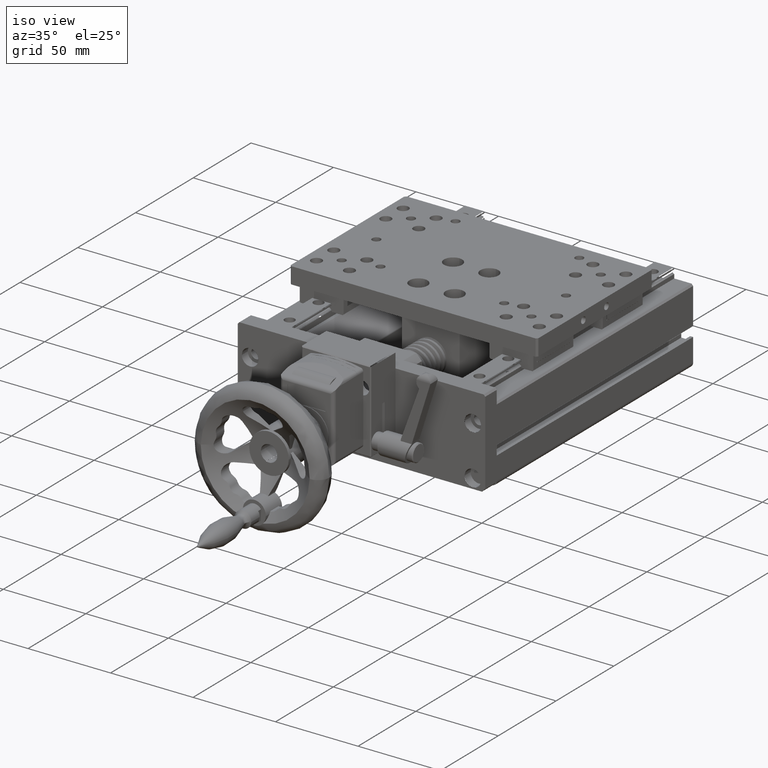
[diagram: clean part render]
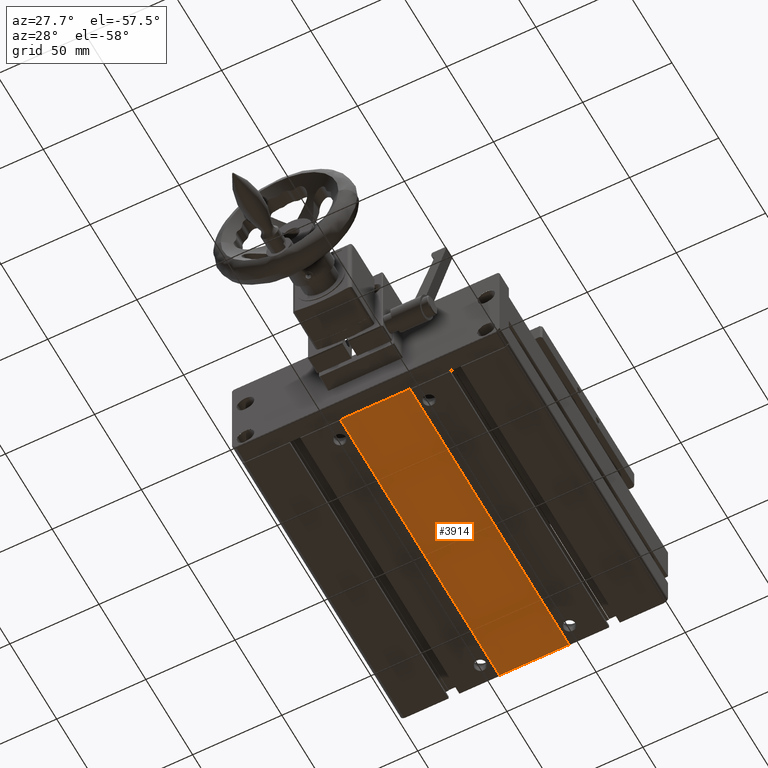
[diagram: tour spotlight — one face highlighted and labeled with its STEP entity id]
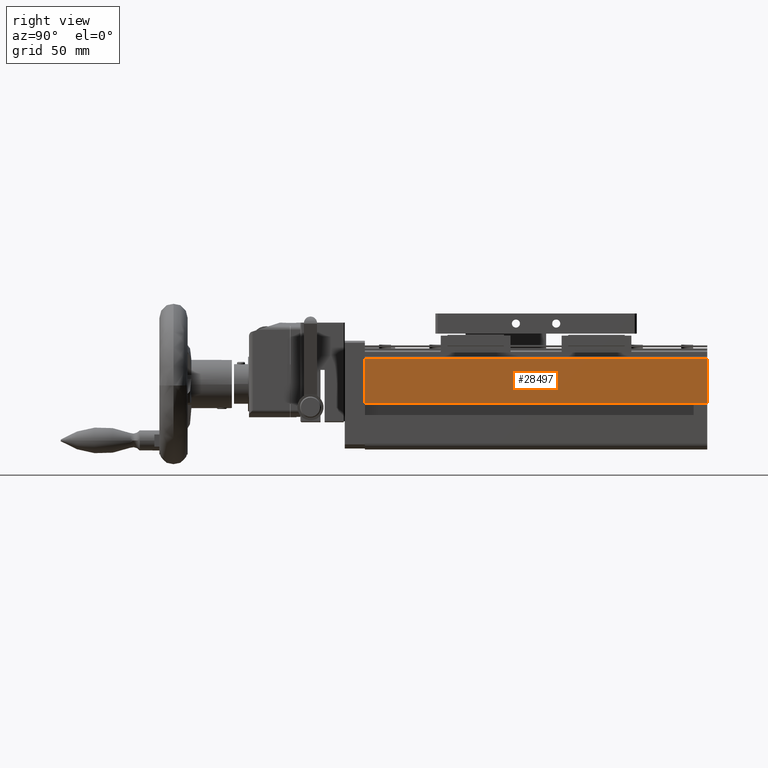
[diagram: tour spotlight — one face highlighted and labeled with its STEP entity id]
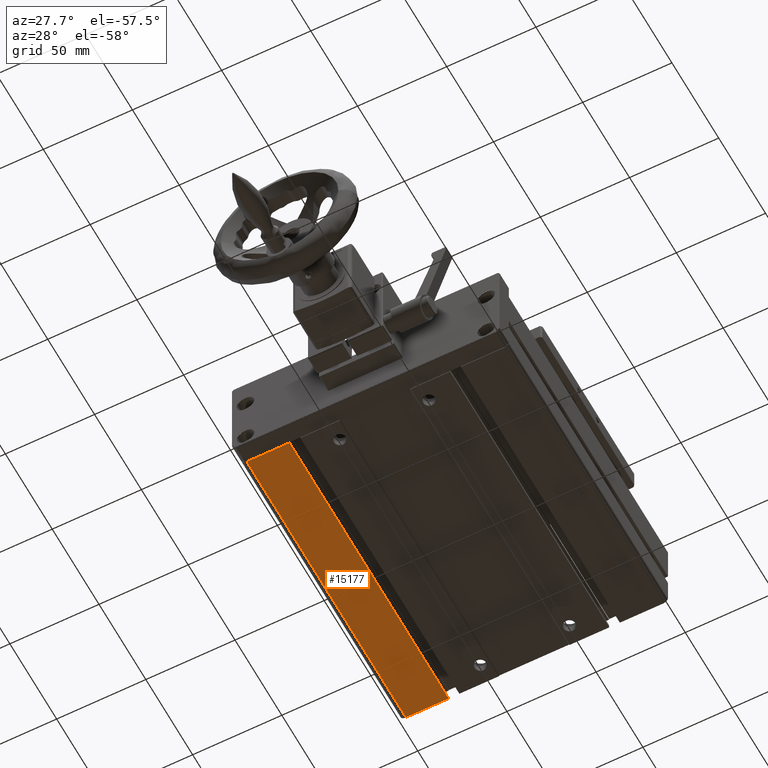
[diagram: tour spotlight — one face highlighted and labeled with its STEP entity id]
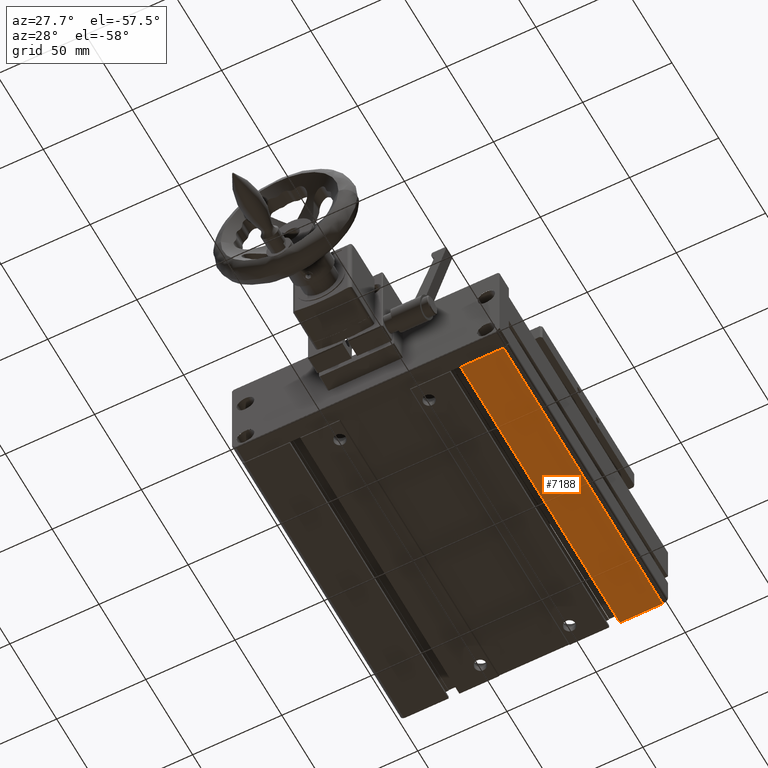
[diagram: tour spotlight — one face highlighted and labeled with its STEP entity id]
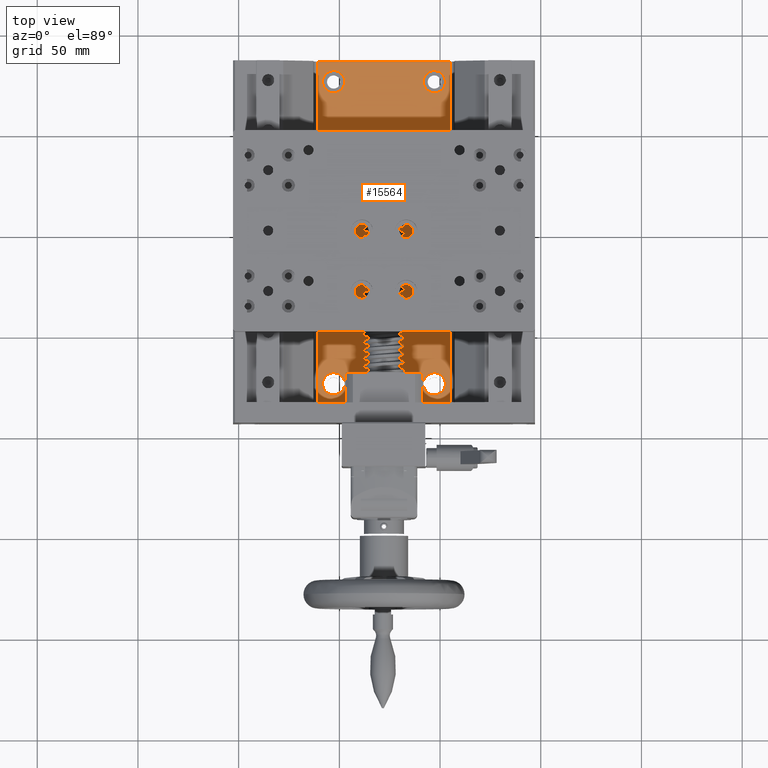
[diagram: tour spotlight — one face highlighted and labeled with its STEP entity id]
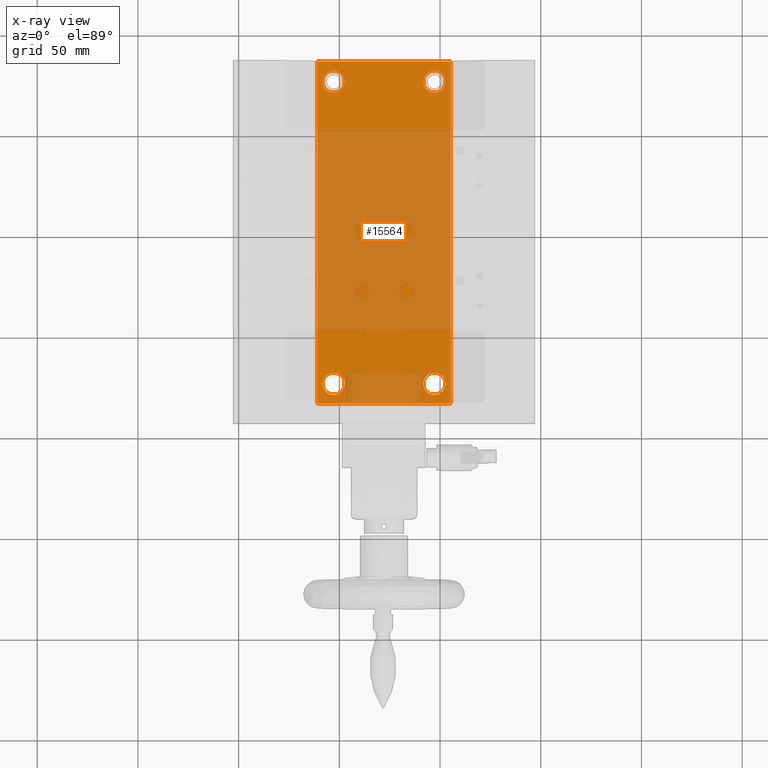
[diagram: x-ray of the same camera — body ghosted, this tour face saturated]
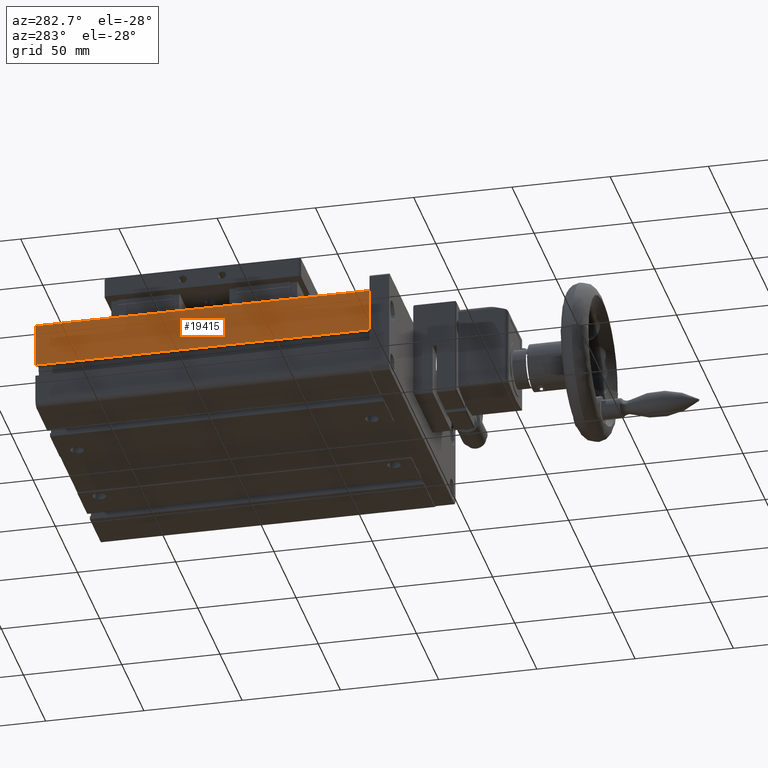
[diagram: tour spotlight — one face highlighted and labeled with its STEP entity id]
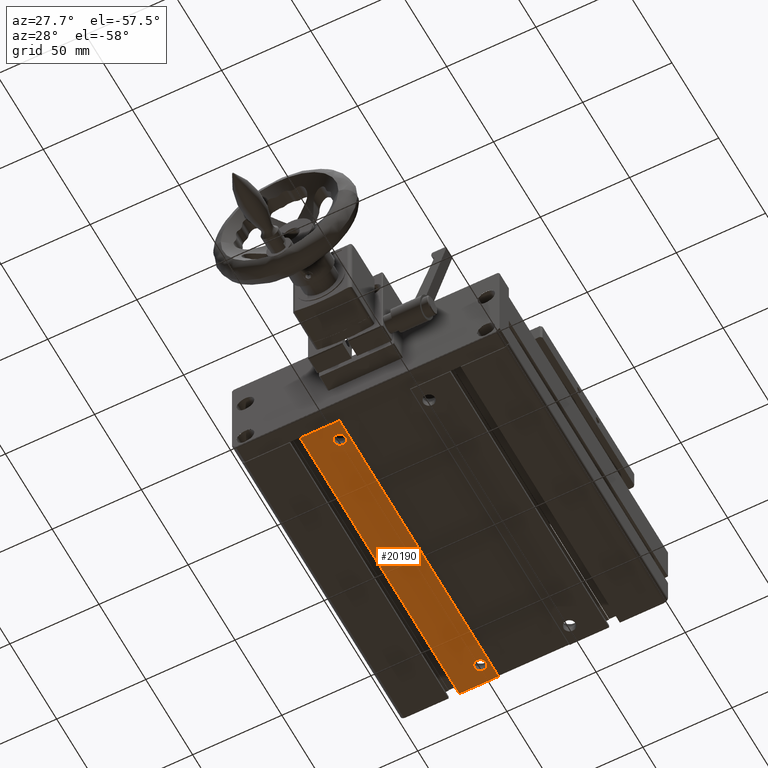
[diagram: tour spotlight — one face highlighted and labeled with its STEP entity id]
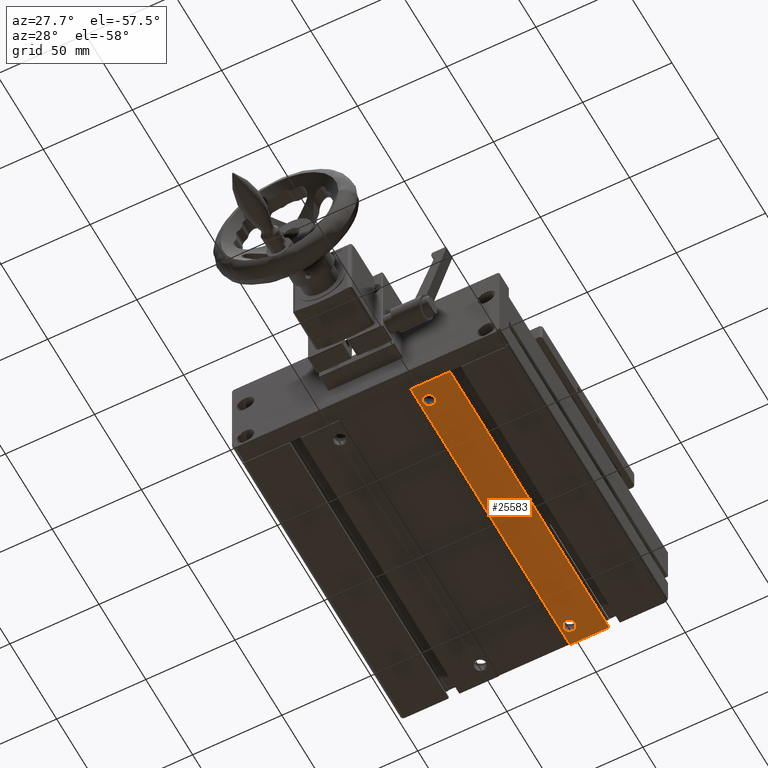
[diagram: tour spotlight — one face highlighted and labeled with its STEP entity id]
A machine part: a face-by-face anatomy tour. The part has 711 B-rep faces; the first image is the clean iso view, then the 8 largest visible faces are spotlighted one at a time (largest first), each with its STEP entity span.

Face 1 — auxiliary view, entity #3914. In plain terms, the highlighted planar face has unit normal (-0, -0, -1).
Definition (entity closure, byte-faithful):
#333 = EDGE_CURVE ( 'NONE', #9704, #12309, #22342, .T. ) ;
#716 = DIRECTION ( 'NONE',  ( 3.491481338843133355E-15, 1.000000000000000000, -3.657132581846951845E-29 ) ) ;
#1974 = VERTEX_POINT ( 'NONE', #16158 ) ;
#2774 = CARTESIAN_POINT ( 'NONE',  ( -47.32647947980051129, -83.04726459790873605, -22.50000000000085265 ) ) ;
#2823 = VECTOR ( 'NONE', #20685, 1000.000000000000000 ) ;
#2864 = FACE_OUTER_BOUND ( 'NONE', #15419, .T. ) ;
#3037 = DIRECTION ( 'NONE',  ( -3.491481338843133355E-15, -2.438088387897967896E-29, -1.000000000000000000 ) ) ;
#3108 = DIRECTION ( 'NONE',  ( 3.491481338843133355E-15, 1.000000000000000000, -3.657132581846951845E-29 ) ) ;
#3204 = PLANE ( 'NONE',  #21448 ) ;
#3229 = CARTESIAN_POINT ( 'NONE',  ( -8.326479479802307182, -83.04726459790886395, -22.50000000000085265 ) ) ;
#3914 = ADVANCED_FACE ( 'NONE', ( #2864 ), #3204, .T. ) ;
#5000 = EDGE_CURVE ( 'NONE', #1974, #12309, #25676, .T. ) ;
#5076 = DIRECTION ( 'NONE',  ( -1.000000000000000000, 3.491481338843133355E-15, 3.491481338843133355E-15 ) ) ;
#5524 = VERTEX_POINT ( 'NONE', #3229 ) ;
#6690 = CARTESIAN_POINT ( 'NONE',  ( -47.32647947980051129, -83.04726459790873605, -22.50000000000085265 ) ) ;
#9704 = VERTEX_POINT ( 'NONE', #29120 ) ;
#9883 = CARTESIAN_POINT ( 'NONE',  ( -47.32647947979990022, 86.95273540209126395, -22.50000000000085265 ) ) ;
#10652 = CARTESIAN_POINT ( 'NONE',  ( -8.326479479802307182, -83.04726459790886395, -22.50000000000085265 ) ) ;
#12309 = VERTEX_POINT ( 'NONE', #9883 ) ;
#14735 = DIRECTION ( 'NONE',  ( -1.000000000000000000, 3.491481338843133355E-15, 3.491481338843133355E-15 ) ) ;
#15419 = EDGE_LOOP ( 'NONE', ( #15921, #26444, #31671, #15898 ) ) ;
#15898 = ORIENTED_EDGE ( 'NONE', *, *, #5000, .T. ) ;
#15921 = ORIENTED_EDGE ( 'NONE', *, *, #333, .F. ) ;
#16078 = LINE ( 'NONE', #10652, #2823 ) ;
#16158 = CARTESIAN_POINT ( 'NONE',  ( -47.32647947980051129, -83.04726459790873605, -22.50000000000085265 ) ) ;
#19861 = CARTESIAN_POINT ( 'NONE',  ( -47.32647947979990022, 86.95273540209126395, -22.50000000000085265 ) ) ;
#20685 = DIRECTION ( 'NONE',  ( 3.491481338843133355E-15, 1.000000000000000000, -3.657132581846951845E-29 ) ) ;
#21309 = EDGE_CURVE ( 'NONE', #5524, #9704, #16078, .T. ) ;
#21448 = AXIS2_PLACEMENT_3D ( 'NONE', #27934, #3037, #716 ) ;
#22342 = LINE ( 'NONE', #19861, #29168 ) ;
#25676 = LINE ( 'NONE', #2774, #27634 ) ;
#26444 = ORIENTED_EDGE ( 'NONE', *, *, #21309, .F. ) ;
#27634 = VECTOR ( 'NONE', #3108, 1000.000000000000000 ) ;
#27934 = CARTESIAN_POINT ( 'NONE',  ( -47.32647947980051129, -83.04726459790873605, -22.50000000000085265 ) ) ;
#29120 = CARTESIAN_POINT ( 'NONE',  ( -8.326479479801696115, 86.95273540209113605, -22.50000000000085265 ) ) ;
#29168 = VECTOR ( 'NONE', #5076, 1000.000000000000000 ) ;
#29314 = EDGE_CURVE ( 'NONE', #5524, #1974, #31996, .T. ) ;
#31671 = ORIENTED_EDGE ( 'NONE', *, *, #29314, .T. ) ;
#31996 = LINE ( 'NONE', #6690, #32053 ) ;
#32053 = VECTOR ( 'NONE', #14735, 1000.000000000000000 ) ;

Face 2 — right view, entity #28497. In plain terms, the highlighted planar face has unit normal (1, -0, -0).
Definition (entity closure, byte-faithful):
#129 = DIRECTION ( 'NONE',  ( 3.491481338843133355E-15, 1.000000000000000000, -3.657132581846951845E-29 ) ) ;
#999 = DIRECTION ( 'NONE',  ( -8.423497403885363229E-14, 2.575335141161237422E-28, -1.000000000000000000 ) ) ;
#1575 = LINE ( 'NONE', #1889, #1709 ) ;
#1709 = VECTOR ( 'NONE', #2058, 1000.000000000000000 ) ;
#1889 = CARTESIAN_POINT ( 'NONE',  ( 47.17352052019968767, -83.04726459790906290, 0.000000000000000000 ) ) ;
#2058 = DIRECTION ( 'NONE',  ( 3.491481338843133355E-15, 1.000000000000000000, -3.657132581846951845E-29 ) ) ;
#2476 = CARTESIAN_POINT ( 'NONE',  ( 47.17352052020201825, 86.95273540209095131, 22.00000000000024158 ) ) ;
#4131 = DIRECTION ( 'NONE',  ( 1.000000000000000000, -3.491481338843133355E-15, -8.423497403885363229E-14 ) ) ;
#4294 = VERTEX_POINT ( 'NONE', #25082 ) ;
#4787 = CARTESIAN_POINT ( 'NONE',  ( 47.17352052020146402, -83.04726459790906290, 22.00000000000024158 ) ) ;
#5677 = VERTEX_POINT ( 'NONE', #17206 ) ;
#5810 = VECTOR ( 'NONE', #9811, 1000.000000000000000 ) ;
#9134 = VERTEX_POINT ( 'NONE', #9801 ) ;
#9801 = CARTESIAN_POINT ( 'NONE',  ( 47.17352052020146402, -83.04726459790906290, 22.00000000000024158 ) ) ;
#9811 = DIRECTION ( 'NONE',  ( -8.423497403885363229E-14, 2.575335141161237422E-28, -1.000000000000000000 ) ) ;
#10143 = EDGE_CURVE ( 'NONE', #9134, #4294, #12274, .T. ) ;
#11028 = EDGE_CURVE ( 'NONE', #21559, #5677, #19363, .T. ) ;
#11523 = AXIS2_PLACEMENT_3D ( 'NONE', #26194, #4131, #999 ) ;
#11881 = EDGE_CURVE ( 'NONE', #9134, #21559, #22387, .T. ) ;
#12274 = LINE ( 'NONE', #22346, #5810 ) ;
#12568 = VECTOR ( 'NONE', #29897, 1000.000000000000000 ) ;
#14555 = ORIENTED_EDGE ( 'NONE', *, *, #11028, .F. ) ;
#14756 = CARTESIAN_POINT ( 'NONE',  ( 47.17352052020201825, 86.95273540209095131, 22.00000000000024158 ) ) ;
#15755 = VECTOR ( 'NONE', #129, 1000.000000000000000 ) ;
#17206 = CARTESIAN_POINT ( 'NONE',  ( 47.17352052020024189, 86.95273540209095131, 0.000000000000000000 ) ) ;
#18689 = ORIENTED_EDGE ( 'NONE', *, *, #11881, .F. ) ;
#19363 = LINE ( 'NONE', #14756, #12568 ) ;
#20813 = ORIENTED_EDGE ( 'NONE', *, *, #10143, .T. ) ;
#21080 = FACE_OUTER_BOUND ( 'NONE', #22347, .T. ) ;
#21559 = VERTEX_POINT ( 'NONE', #2476 ) ;
#22346 = CARTESIAN_POINT ( 'NONE',  ( 47.17352052020146402, -83.04726459790906290, 22.00000000000024158 ) ) ;
#22347 = EDGE_LOOP ( 'NONE', ( #14555, #18689, #20813, #32111 ) ) ;
#22387 = LINE ( 'NONE', #4787, #15755 ) ;
#23561 = PLANE ( 'NONE',  #11523 ) ;
#24982 = EDGE_CURVE ( 'NONE', #4294, #5677, #1575, .T. ) ;
#25082 = CARTESIAN_POINT ( 'NONE',  ( 47.17352052019968767, -83.04726459790906290, 0.000000000000000000 ) ) ;
#26194 = CARTESIAN_POINT ( 'NONE',  ( 47.17352052020146402, -83.04726459790906290, 22.00000000000024158 ) ) ;
#28497 = ADVANCED_FACE ( 'NONE', ( #21080 ), #23561, .T. ) ;
#29897 = DIRECTION ( 'NONE',  ( -8.423497403885363229E-14, 2.575335141161237422E-28, -1.000000000000000000 ) ) ;
#32111 = ORIENTED_EDGE ( 'NONE', *, *, #24982, .T. ) ;

Face 3 — auxiliary view, entity #15177. In plain terms, the highlighted planar face has unit normal (-0, -0, -1).
Definition (entity closure, byte-faithful):
#270 = AXIS2_PLACEMENT_3D ( 'NONE', #9104, #6514, #8795 ) ;
#2357 = CARTESIAN_POINT ( 'NONE',  ( -75.82647947980170500, 86.95273540209137764, -22.99999999999968736 ) ) ;
#2411 = EDGE_CURVE ( 'NONE', #26848, #6802, #5096, .T. ) ;
#2724 = ORIENTED_EDGE ( 'NONE', *, *, #10401, .F. ) ;
#2902 = DIRECTION ( 'NONE',  ( 3.491481338843133355E-15, 1.000000000000000000, -3.657132581846951845E-29 ) ) ;
#3050 = VECTOR ( 'NONE', #6945, 1000.000000000000000 ) ;
#4741 = EDGE_CURVE ( 'NONE', #9764, #26848, #5785, .T. ) ;
#5096 = LINE ( 'NONE', #5262, #13053 ) ;
#5262 = CARTESIAN_POINT ( 'NONE',  ( -99.82647947980095182, -83.04726459790856552, -22.99999999999968736 ) ) ;
#5785 = LINE ( 'NONE', #11332, #25495 ) ;
#6514 = DIRECTION ( 'NONE',  ( -3.491481338843133355E-15, -2.438088387897967896E-29, -1.000000000000000000 ) ) ;
#6802 = VERTEX_POINT ( 'NONE', #18466 ) ;
#6945 = DIRECTION ( 'NONE',  ( 3.491481338843133355E-15, 1.000000000000000000, -3.657132581846951845E-29 ) ) ;
#7431 = CARTESIAN_POINT ( 'NONE',  ( -75.82647947980231606, -83.04726459790865079, -22.99999999999968736 ) ) ;
#8468 = EDGE_LOOP ( 'NONE', ( #2724, #14469, #23688, #30936 ) ) ;
#8795 = DIRECTION ( 'NONE',  ( 3.491481338843133355E-15, 1.000000000000000000, -3.657132581846951845E-29 ) ) ;
#9104 = CARTESIAN_POINT ( 'NONE',  ( -75.82647947980231606, -83.04726459790865079, -22.99999999999968736 ) ) ;
#9187 = CARTESIAN_POINT ( 'NONE',  ( -75.82647947980231606, -83.04726459790865079, -22.99999999999968736 ) ) ;
#9764 = VERTEX_POINT ( 'NONE', #9187 ) ;
#10401 = EDGE_CURVE ( 'NONE', #21856, #6802, #16870, .T. ) ;
#11332 = CARTESIAN_POINT ( 'NONE',  ( -75.82647947980231606, -83.04726459790865079, -22.99999999999968736 ) ) ;
#11511 = CARTESIAN_POINT ( 'NONE',  ( -75.82647947980170500, 86.95273540209137764, -22.99999999999968736 ) ) ;
#12390 = EDGE_CURVE ( 'NONE', #9764, #21856, #24724, .T. ) ;
#12402 = DIRECTION ( 'NONE',  ( -1.000000000000000000, 3.491481338843133355E-15, 3.491481338843133355E-15 ) ) ;
#13053 = VECTOR ( 'NONE', #2902, 1000.000000000000000 ) ;
#14469 = ORIENTED_EDGE ( 'NONE', *, *, #12390, .F. ) ;
#15177 = ADVANCED_FACE ( 'NONE', ( #21638 ), #23795, .T. ) ;
#16870 = LINE ( 'NONE', #2357, #17879 ) ;
#17879 = VECTOR ( 'NONE', #12402, 1000.000000000000000 ) ;
#18466 = CARTESIAN_POINT ( 'NONE',  ( -99.82647947980034075, 86.95273540209146290, -22.99999999999968736 ) ) ;
#18565 = DIRECTION ( 'NONE',  ( -1.000000000000000000, 3.491481338843133355E-15, 3.491481338843133355E-15 ) ) ;
#21638 = FACE_OUTER_BOUND ( 'NONE', #8468, .T. ) ;
#21856 = VERTEX_POINT ( 'NONE', #11511 ) ;
#23688 = ORIENTED_EDGE ( 'NONE', *, *, #4741, .T. ) ;
#23795 = PLANE ( 'NONE',  #270 ) ;
#24724 = LINE ( 'NONE', #7431, #3050 ) ;
#25495 = VECTOR ( 'NONE', #18565, 1000.000000000000000 ) ;
#26848 = VERTEX_POINT ( 'NONE', #29324 ) ;
#29324 = CARTESIAN_POINT ( 'NONE',  ( -99.82647947980095182, -83.04726459790856552, -22.99999999999968736 ) ) ;
#30936 = ORIENTED_EDGE ( 'NONE', *, *, #2411, .T. ) ;

Face 4 — auxiliary view, entity #7188. In plain terms, the highlighted planar face has unit normal (-0, -0, -1).
Definition (entity closure, byte-faithful):
#3598 = CARTESIAN_POINT ( 'NONE',  ( 20.17352052019949582, -83.04726459790897763, -22.99999999999968736 ) ) ;
#5058 = VECTOR ( 'NONE', #8690, 1000.000000000000000 ) ;
#5414 = VERTEX_POINT ( 'NONE', #10793 ) ;
#6327 = CARTESIAN_POINT ( 'NONE',  ( 44.17352052019901976, -83.04726459790906290, -22.99999999999968736 ) ) ;
#7188 = ADVANCED_FACE ( 'NONE', ( #7403 ), #12160, .T. ) ;
#7403 = FACE_OUTER_BOUND ( 'NONE', #29631, .T. ) ;
#7500 = VERTEX_POINT ( 'NONE', #29583 ) ;
#7545 = LINE ( 'NONE', #18048, #21671 ) ;
#8379 = DIRECTION ( 'NONE',  ( -1.000000000000000000, 3.491481338843133355E-15, 3.491481338843133355E-15 ) ) ;
#8690 = DIRECTION ( 'NONE',  ( -1.000000000000000000, 3.491481338843133355E-15, 3.491481338843133355E-15 ) ) ;
#9683 = CARTESIAN_POINT ( 'NONE',  ( 20.17352052019949582, -83.04726459790897763, -22.99999999999968736 ) ) ;
#10184 = VECTOR ( 'NONE', #31784, 1000.000000000000000 ) ;
#10793 = CARTESIAN_POINT ( 'NONE',  ( 44.17352052019901976, -83.04726459790906290, -22.99999999999968736 ) ) ;
#10838 = LINE ( 'NONE', #3598, #19625 ) ;
#12160 = PLANE ( 'NONE',  #29225 ) ;
#13952 = CARTESIAN_POINT ( 'NONE',  ( 20.17352052020010689, 86.95273540209103658, -22.99999999999968736 ) ) ;
#14475 = EDGE_CURVE ( 'NONE', #5414, #7500, #21763, .T. ) ;
#14503 = ORIENTED_EDGE ( 'NONE', *, *, #18960, .F. ) ;
#18030 = EDGE_CURVE ( 'NONE', #26322, #23912, #7545, .T. ) ;
#18048 = CARTESIAN_POINT ( 'NONE',  ( 20.17352052019949582, -83.04726459790897763, -22.99999999999968736 ) ) ;
#18960 = EDGE_CURVE ( 'NONE', #7500, #23912, #26654, .T. ) ;
#19625 = VECTOR ( 'NONE', #8379, 1000.000000000000000 ) ;
#19917 = DIRECTION ( 'NONE',  ( 3.491481338843133355E-15, 1.000000000000000000, -3.657132581846951845E-29 ) ) ;
#21671 = VECTOR ( 'NONE', #22385, 1000.000000000000000 ) ;
#21763 = LINE ( 'NONE', #6327, #10184 ) ;
#22385 = DIRECTION ( 'NONE',  ( 3.491481338843133355E-15, 1.000000000000000000, -3.657132581846951845E-29 ) ) ;
#23912 = VERTEX_POINT ( 'NONE', #32552 ) ;
#25018 = DIRECTION ( 'NONE',  ( -3.491481338843133355E-15, -2.438088387897967896E-29, -1.000000000000000000 ) ) ;
#25021 = ORIENTED_EDGE ( 'NONE', *, *, #25936, .T. ) ;
#25936 = EDGE_CURVE ( 'NONE', #5414, #26322, #10838, .T. ) ;
#26322 = VERTEX_POINT ( 'NONE', #30392 ) ;
#26654 = LINE ( 'NONE', #13952, #5058 ) ;
#29225 = AXIS2_PLACEMENT_3D ( 'NONE', #9683, #25018, #19917 ) ;
#29583 = CARTESIAN_POINT ( 'NONE',  ( 44.17352052019963082, 86.95273540209095131, -22.99999999999968736 ) ) ;
#29631 = EDGE_LOOP ( 'NONE', ( #14503, #32161, #25021, #30190 ) ) ;
#30190 = ORIENTED_EDGE ( 'NONE', *, *, #18030, .T. ) ;
#30392 = CARTESIAN_POINT ( 'NONE',  ( 20.17352052019949582, -83.04726459790897763, -22.99999999999968736 ) ) ;
#31784 = DIRECTION ( 'NONE',  ( 3.491481338843133355E-15, 1.000000000000000000, -3.657132581846951845E-29 ) ) ;
#32161 = ORIENTED_EDGE ( 'NONE', *, *, #14475, .F. ) ;
#32552 = CARTESIAN_POINT ( 'NONE',  ( 20.17352052020010689, 86.95273540209103658, -22.99999999999968736 ) ) ;

Face 5 — top view, entity #15564. An x-ray twin of the same camera follows (body ghosted, this face saturated) — the face is partly hidden behind the body. In plain terms, the highlighted planar face has unit normal (0, 0, 1).
Definition (entity closure, byte-faithful):
#1317 = DIRECTION ( 'NONE',  ( -3.469446951953610639E-15, -1.000000000000000000, 0.000000000000000000 ) ) ;
#1546 = EDGE_LOOP ( 'NONE', ( #28276, #17927, #20288, #7202 ) ) ;
#2188 = CIRCLE ( 'NONE', #23227, 5.500000000000005329 ) ;
#2503 = VERTEX_POINT ( 'NONE', #23313 ) ;
#2928 = FACE_BOUND ( 'NONE', #28930, .T. ) ;
#3272 = CARTESIAN_POINT ( 'NONE',  ( -52.82647947979807412, 76.95273540209126395, -12.99999999999990052 ) ) ;
#3727 = ORIENTED_EDGE ( 'NONE', *, *, #29264, .F. ) ;
#3760 = DIRECTION ( 'NONE',  ( -3.784851220313030003E-15, -1.000000000000000000, 0.000000000000000000 ) ) ;
#4332 = ORIENTED_EDGE ( 'NONE', *, *, #13951, .F. ) ;
#4417 = DIRECTION ( 'NONE',  ( -3.469446951953610639E-15, -1.000000000000000000, 0.000000000000000000 ) ) ;
#4833 = LINE ( 'NONE', #29645, #31281 ) ;
#4842 = CARTESIAN_POINT ( 'NONE',  ( -60.82647947980029812, 86.95273540209132079, -12.99999999999990052 ) ) ;
#4991 = VERTEX_POINT ( 'NONE', #29464 ) ;
#5009 = AXIS2_PLACEMENT_3D ( 'NONE', #9108, #26431, #31657 ) ;
#5125 = CARTESIAN_POINT ( 'NONE',  ( 5.173520520199092587, -83.04726459790892079, -12.99999999999990052 ) ) ;
#5145 = AXIS2_PLACEMENT_3D ( 'NONE', #24929, #20732, #30937 ) ;
#5618 = CIRCLE ( 'NONE', #25564, 5.500000000000005329 ) ;
#6096 = CIRCLE ( 'NONE', #14496, 5.500000000000005329 ) ;
#6199 = DIRECTION ( 'NONE',  ( 3.491481338843133355E-15, 2.438088387897967896E-29, 1.000000000000000000 ) ) ;
#6231 = LINE ( 'NONE', #31209, #32280 ) ;
#6255 = DIRECTION ( 'NONE',  ( 3.491481338843133355E-15, 2.438088387897967896E-29, 1.000000000000000000 ) ) ;
#6717 = ORIENTED_EDGE ( 'NONE', *, *, #24175, .F. ) ;
#6930 = CARTESIAN_POINT ( 'NONE',  ( -60.82647947980029812, 86.95273540209132079, -12.99999999999990052 ) ) ;
#7113 = EDGE_CURVE ( 'NONE', #2503, #25355, #5618, .T. ) ;
#7202 = ORIENTED_EDGE ( 'NONE', *, *, #16993, .T. ) ;
#7341 = ORIENTED_EDGE ( 'NONE', *, *, #31709, .F. ) ;
#8326 = EDGE_CURVE ( 'NONE', #10603, #29806, #6231, .T. ) ;
#9108 = CARTESIAN_POINT ( 'NONE',  ( -2.826479479798083005, 76.95273540209109342, -12.99999999999990052 ) ) ;
#9696 = CIRCLE ( 'NONE', #28640, 5.500000000000005329 ) ;
#9848 = FACE_BOUND ( 'NONE', #16865, .T. ) ;
#10603 = VERTEX_POINT ( 'NONE', #11856 ) ;
#11101 = ORIENTED_EDGE ( 'NONE', *, *, #7113, .F. ) ;
#11479 = VERTEX_POINT ( 'NONE', #27258 ) ;
#11553 = CARTESIAN_POINT ( 'NONE',  ( -52.82647947979809544, 71.45273540209124974, -12.99999999999990052 ) ) ;
#11856 = CARTESIAN_POINT ( 'NONE',  ( -60.82647947980090919, -83.04726459790870763, -12.99999999999990052 ) ) ;
#12017 = DIRECTION ( 'NONE',  ( 1.000000000000000000, -3.491481338843133355E-15, -3.491481338843133355E-15 ) ) ;
#12161 = DIRECTION ( 'NONE',  ( 3.491481338843133355E-15, 1.000000000000000000, -3.657132581846951845E-29 ) ) ;
#12805 = DIRECTION ( 'NONE',  ( 3.491481338843133355E-15, 2.438088387897967896E-29, 1.000000000000000000 ) ) ;
#12974 = DIRECTION ( 'NONE',  ( -3.491481338843133355E-15, -1.000000000000000000, 3.657132581846951845E-29 ) ) ;
#13582 = DIRECTION ( 'NONE',  ( -3.784851220313030003E-15, -1.000000000000000000, 0.000000000000000000 ) ) ;
#13951 = EDGE_CURVE ( 'NONE', #23949, #14370, #6096, .T. ) ;
#14370 = VERTEX_POINT ( 'NONE', #11553 ) ;
#14374 = ORIENTED_EDGE ( 'NONE', *, *, #16205, .F. ) ;
#14473 = VERTEX_POINT ( 'NONE', #22108 ) ;
#14496 = AXIS2_PLACEMENT_3D ( 'NONE', #31017, #6199, #13582 ) ;
#14569 = DIRECTION ( 'NONE',  ( -3.784851220313030003E-15, -1.000000000000000000, 0.000000000000000000 ) ) ;
#14959 = CARTESIAN_POINT ( 'NONE',  ( -52.82647947979859282, -78.54726459790872184, -12.99999999999990052 ) ) ;
#15442 = AXIS2_PLACEMENT_3D ( 'NONE', #22710, #12805, #12974 ) ;
#15564 = ADVANCED_FACE ( 'NONE', ( #9848, #30257, #2928, #19912, #20369 ), #30092, .T. ) ;
#15707 = VERTEX_POINT ( 'NONE', #18719 ) ;
#16141 = LINE ( 'NONE', #6930, #29273 ) ;
#16205 = EDGE_CURVE ( 'NONE', #25355, #2503, #27605, .T. ) ;
#16248 = ORIENTED_EDGE ( 'NONE', *, *, #31435, .F. ) ;
#16249 = DIRECTION ( 'NONE',  ( 3.491481338843133355E-15, 1.000000000000000000, -3.657132581846951845E-29 ) ) ;
#16566 = EDGE_CURVE ( 'NONE', #10603, #14473, #4833, .T. ) ;
#16758 = EDGE_LOOP ( 'NONE', ( #6717, #4332 ) ) ;
#16865 = EDGE_LOOP ( 'NONE', ( #14374, #11101 ) ) ;
#16993 = EDGE_CURVE ( 'NONE', #14473, #4991, #27188, .T. ) ;
#17200 = CARTESIAN_POINT ( 'NONE',  ( -52.82647947979857150, -73.04726459790872184, -12.99999999999990052 ) ) ;
#17313 = DIRECTION ( 'NONE',  ( 1.000000000000000000, -3.491481338843133355E-15, -3.491481338843133355E-15 ) ) ;
#17360 = AXIS2_PLACEMENT_3D ( 'NONE', #17200, #22155, #14569 ) ;
#17613 = VERTEX_POINT ( 'NONE', #23928 ) ;
#17927 = ORIENTED_EDGE ( 'NONE', *, *, #8326, .F. ) ;
#18719 = CARTESIAN_POINT ( 'NONE',  ( -2.826479479798573724, -67.54726459790886395, -12.99999999999990052 ) ) ;
#19374 = CARTESIAN_POINT ( 'NONE',  ( -2.826479479798582606, -73.04726459790886395, -12.99999999999990052 ) ) ;
#19450 = CIRCLE ( 'NONE', #17360, 5.500000000000005329 ) ;
#19608 = EDGE_CURVE ( 'NONE', #15707, #11479, #9696, .T. ) ;
#19912 = FACE_BOUND ( 'NONE', #16758, .T. ) ;
#20288 = ORIENTED_EDGE ( 'NONE', *, *, #16566, .T. ) ;
#20369 = FACE_OUTER_BOUND ( 'NONE', #1546, .T. ) ;
#20732 = DIRECTION ( 'NONE',  ( 3.491481338843133355E-15, 2.438088387897967896E-29, 1.000000000000000000 ) ) ;
#20914 = ORIENTED_EDGE ( 'NONE', *, *, #19608, .F. ) ;
#21165 = VERTEX_POINT ( 'NONE', #14959 ) ;
#21898 = CIRCLE ( 'NONE', #25584, 5.500000000000005329 ) ;
#22108 = CARTESIAN_POINT ( 'NONE',  ( 5.173520520199092587, -83.04726459790892079, -12.99999999999990052 ) ) ;
#22155 = DIRECTION ( 'NONE',  ( 3.491481338843133355E-15, 2.438088387897967896E-29, 1.000000000000000000 ) ) ;
#22692 = CARTESIAN_POINT ( 'NONE',  ( -52.82647947979805991, 82.45273540209126395, -12.99999999999990052 ) ) ;
#22710 = CARTESIAN_POINT ( 'NONE',  ( -60.82647947980090919, -83.04726459790870763, -12.99999999999990052 ) ) ;
#23227 = AXIS2_PLACEMENT_3D ( 'NONE', #3272, #6255, #3760 ) ;
#23313 = CARTESIAN_POINT ( 'NONE',  ( -2.826479479798074124, 82.45273540209109342, -12.99999999999990052 ) ) ;
#23494 = EDGE_LOOP ( 'NONE', ( #16248, #20914 ) ) ;
#23882 = CARTESIAN_POINT ( 'NONE',  ( -2.826479479798083005, 76.95273540209109342, -12.99999999999990052 ) ) ;
#23928 = CARTESIAN_POINT ( 'NONE',  ( -52.82647947979855729, -67.54726459790872184, -12.99999999999990052 ) ) ;
#23949 = VERTEX_POINT ( 'NONE', #22692 ) ;
#24175 = EDGE_CURVE ( 'NONE', #14370, #23949, #2188, .T. ) ;
#24929 = CARTESIAN_POINT ( 'NONE',  ( -52.82647947979857150, -73.04726459790872184, -12.99999999999990052 ) ) ;
#25355 = VERTEX_POINT ( 'NONE', #26908 ) ;
#25564 = AXIS2_PLACEMENT_3D ( 'NONE', #23882, #26189, #1317 ) ;
#25584 = AXIS2_PLACEMENT_3D ( 'NONE', #19374, #26818, #4417 ) ;
#25605 = CIRCLE ( 'NONE', #5145, 5.500000000000005329 ) ;
#26189 = DIRECTION ( 'NONE',  ( 3.491481338843133355E-15, 2.438088387897967896E-29, 1.000000000000000000 ) ) ;
#26431 = DIRECTION ( 'NONE',  ( 3.491481338843133355E-15, 2.438088387897967896E-29, 1.000000000000000000 ) ) ;
#26818 = DIRECTION ( 'NONE',  ( 3.491481338843133355E-15, 2.438088387897967896E-29, 1.000000000000000000 ) ) ;
#26901 = DIRECTION ( 'NONE',  ( -3.469446951953610639E-15, -1.000000000000000000, 0.000000000000000000 ) ) ;
#26908 = CARTESIAN_POINT ( 'NONE',  ( -2.826479479798102101, 71.45273540209107921, -12.99999999999990052 ) ) ;
#27188 = LINE ( 'NONE', #5125, #28702 ) ;
#27258 = CARTESIAN_POINT ( 'NONE',  ( -2.826479479798601702, -78.54726459790886395, -12.99999999999990052 ) ) ;
#27605 = CIRCLE ( 'NONE', #5009, 5.500000000000005329 ) ;
#28276 = ORIENTED_EDGE ( 'NONE', *, *, #31123, .F. ) ;
#28640 = AXIS2_PLACEMENT_3D ( 'NONE', #29190, #29022, #26901 ) ;
#28702 = VECTOR ( 'NONE', #12161, 1000.000000000000000 ) ;
#28930 = EDGE_LOOP ( 'NONE', ( #3727, #7341 ) ) ;
#29022 = DIRECTION ( 'NONE',  ( 3.491481338843133355E-15, 2.438088387897967896E-29, 1.000000000000000000 ) ) ;
#29190 = CARTESIAN_POINT ( 'NONE',  ( -2.826479479798582606, -73.04726459790886395, -12.99999999999990052 ) ) ;
#29264 = EDGE_CURVE ( 'NONE', #21165, #17613, #19450, .T. ) ;
#29273 = VECTOR ( 'NONE', #12017, 1000.000000000000000 ) ;
#29464 = CARTESIAN_POINT ( 'NONE',  ( 5.173520520199703654, 86.95273540209107921, -12.99999999999990052 ) ) ;
#29645 = CARTESIAN_POINT ( 'NONE',  ( -60.82647947980090919, -83.04726459790870763, -12.99999999999990052 ) ) ;
#29806 = VERTEX_POINT ( 'NONE', #4842 ) ;
#30092 = PLANE ( 'NONE',  #15442 ) ;
#30257 = FACE_BOUND ( 'NONE', #23494, .T. ) ;
#30937 = DIRECTION ( 'NONE',  ( -3.784851220313030003E-15, -1.000000000000000000, 0.000000000000000000 ) ) ;
#31017 = CARTESIAN_POINT ( 'NONE',  ( -52.82647947979807412, 76.95273540209126395, -12.99999999999990052 ) ) ;
#31123 = EDGE_CURVE ( 'NONE', #29806, #4991, #16141, .T. ) ;
#31209 = CARTESIAN_POINT ( 'NONE',  ( -60.82647947980090919, -83.04726459790870763, -12.99999999999990052 ) ) ;
#31281 = VECTOR ( 'NONE', #17313, 1000.000000000000000 ) ;
#31435 = EDGE_CURVE ( 'NONE', #11479, #15707, #21898, .T. ) ;
#31657 = DIRECTION ( 'NONE',  ( -3.469446951953610639E-15, -1.000000000000000000, 0.000000000000000000 ) ) ;
#31709 = EDGE_CURVE ( 'NONE', #17613, #21165, #25605, .T. ) ;
#32280 = VECTOR ( 'NONE', #16249, 1000.000000000000000 ) ;

Face 6 — auxiliary view, entity #19415. In plain terms, the highlighted planar face has unit normal (-1, 0, 0).
Definition (entity closure, byte-faithful):
#991 = CARTESIAN_POINT ( 'NONE',  ( -102.8264794798004544, -83.04726459790853710, 0.000000000000000000 ) ) ;
#2371 = DIRECTION ( 'NONE',  ( -1.000000000000000000, 3.491481338843133355E-15, 3.491481338843133355E-15 ) ) ;
#2408 = LINE ( 'NONE', #25149, #27363 ) ;
#2616 = CARTESIAN_POINT ( 'NONE',  ( -102.8264794797997297, 86.95273540209146290, 22.00000000000024158 ) ) ;
#2680 = VERTEX_POINT ( 'NONE', #9794 ) ;
#2766 = VECTOR ( 'NONE', #2872, 1000.000000000000000 ) ;
#2775 = EDGE_LOOP ( 'NONE', ( #14836, #15710, #21758, #23090 ) ) ;
#2872 = DIRECTION ( 'NONE',  ( 3.491481338843133355E-15, 1.000000000000000000, -3.657132581846951845E-29 ) ) ;
#4943 = EDGE_CURVE ( 'NONE', #2680, #23716, #9525, .T. ) ;
#5053 = PLANE ( 'NONE',  #23343 ) ;
#5218 = FACE_OUTER_BOUND ( 'NONE', #2775, .T. ) ;
#5334 = CARTESIAN_POINT ( 'NONE',  ( -102.8264794797997297, 86.95273540209146290, 22.00000000000024158 ) ) ;
#6117 = VERTEX_POINT ( 'NONE', #991 ) ;
#6716 = CARTESIAN_POINT ( 'NONE',  ( -102.8264794798003408, -83.04726459790853710, 22.00000000000024158 ) ) ;
#7563 = VERTEX_POINT ( 'NONE', #27631 ) ;
#7566 = DIRECTION ( 'NONE',  ( 3.491481338843133355E-15, 2.438088387897967896E-29, 1.000000000000000000 ) ) ;
#8876 = VECTOR ( 'NONE', #24313, 1000.000000000000000 ) ;
#9525 = LINE ( 'NONE', #2616, #24983 ) ;
#9794 = CARTESIAN_POINT ( 'NONE',  ( -102.8264794797998434, 86.95273540209146290, 0.000000000000000000 ) ) ;
#10940 = EDGE_CURVE ( 'NONE', #6117, #7563, #27977, .T. ) ;
#12619 = DIRECTION ( 'NONE',  ( 3.491481338843133355E-15, 1.000000000000000000, -3.657132581846951845E-29 ) ) ;
#13069 = CARTESIAN_POINT ( 'NONE',  ( -102.8264794798003408, -83.04726459790853710, 22.00000000000024158 ) ) ;
#14836 = ORIENTED_EDGE ( 'NONE', *, *, #4943, .F. ) ;
#15225 = DIRECTION ( 'NONE',  ( -3.491481338843133355E-15, -1.000000000000000000, 3.657132581846951845E-29 ) ) ;
#15710 = ORIENTED_EDGE ( 'NONE', *, *, #29068, .F. ) ;
#18289 = EDGE_CURVE ( 'NONE', #7563, #23716, #30209, .T. ) ;
#19415 = ADVANCED_FACE ( 'NONE', ( #5218 ), #5053, .T. ) ;
#20327 = CARTESIAN_POINT ( 'NONE',  ( -102.8264794798003408, -83.04726459790853710, 22.00000000000024158 ) ) ;
#21758 = ORIENTED_EDGE ( 'NONE', *, *, #10940, .T. ) ;
#23090 = ORIENTED_EDGE ( 'NONE', *, *, #18289, .T. ) ;
#23343 = AXIS2_PLACEMENT_3D ( 'NONE', #13069, #2371, #15225 ) ;
#23716 = VERTEX_POINT ( 'NONE', #5334 ) ;
#24313 = DIRECTION ( 'NONE',  ( 3.491481338843133355E-15, 2.438088387897967896E-29, 1.000000000000000000 ) ) ;
#24983 = VECTOR ( 'NONE', #7566, 1000.000000000000000 ) ;
#25149 = CARTESIAN_POINT ( 'NONE',  ( -102.8264794798004544, -83.04726459790853710, 0.000000000000000000 ) ) ;
#27363 = VECTOR ( 'NONE', #12619, 1000.000000000000000 ) ;
#27631 = CARTESIAN_POINT ( 'NONE',  ( -102.8264794798003408, -83.04726459790853710, 22.00000000000024158 ) ) ;
#27977 = LINE ( 'NONE', #6716, #8876 ) ;
#29068 = EDGE_CURVE ( 'NONE', #6117, #2680, #2408, .T. ) ;
#30209 = LINE ( 'NONE', #20327, #2766 ) ;

Face 7 — auxiliary view, entity #20190. In plain terms, the highlighted planar face has unit normal (-0, -0, -1).
Definition (entity closure, byte-faithful):
#470 = ORIENTED_EDGE ( 'NONE', *, *, #16352, .T. ) ;
#798 = CARTESIAN_POINT ( 'NONE',  ( -52.82647947979858571, -69.74726459790869626, -22.99999999999968736 ) ) ;
#1721 = CARTESIAN_POINT ( 'NONE',  ( -69.82647947980169079, 86.95273540209134921, -22.99999999999968736 ) ) ;
#1849 = DIRECTION ( 'NONE',  ( -1.000000000000000000, 3.491481338843133355E-15, 3.491481338843133355E-15 ) ) ;
#2007 = VECTOR ( 'NONE', #24454, 1000.000000000000000 ) ;
#2218 = DIRECTION ( 'NONE',  ( -4.205390244792227686E-15, -1.000000000000000000, 0.000000000000000000 ) ) ;
#2315 = CARTESIAN_POINT ( 'NONE',  ( -52.82647947979812386, 76.95273540209126395, -22.99999999999968736 ) ) ;
#2333 = FACE_OUTER_BOUND ( 'NONE', #30567, .T. ) ;
#2761 = VERTEX_POINT ( 'NONE', #24626 ) ;
#2899 = CIRCLE ( 'NONE', #22392, 3.300000000000025135 ) ;
#3093 = EDGE_CURVE ( 'NONE', #4940, #11527, #14363, .T. ) ;
#4376 = AXIS2_PLACEMENT_3D ( 'NONE', #31672, #16892, #2218 ) ;
#4574 = EDGE_CURVE ( 'NONE', #25376, #28128, #16773, .T. ) ;
#4596 = LINE ( 'NONE', #17080, #30147 ) ;
#4715 = CARTESIAN_POINT ( 'NONE',  ( -52.82647947979812386, 76.95273540209126395, -22.99999999999968736 ) ) ;
#4940 = VERTEX_POINT ( 'NONE', #27193 ) ;
#5166 = DIRECTION ( 'NONE',  ( 3.491481338843133355E-15, 2.438088387897967896E-29, 1.000000000000000000 ) ) ;
#5333 = FACE_BOUND ( 'NONE', #14912, .T. ) ;
#6174 = VERTEX_POINT ( 'NONE', #16292 ) ;
#6800 = AXIS2_PLACEMENT_3D ( 'NONE', #31762, #19274, #29325 ) ;
#7470 = VERTEX_POINT ( 'NONE', #24657 ) ;
#7506 = EDGE_CURVE ( 'NONE', #4940, #7470, #4596, .T. ) ;
#9006 = EDGE_CURVE ( 'NONE', #11527, #6174, #18525, .T. ) ;
#9711 = ORIENTED_EDGE ( 'NONE', *, *, #16625, .T. ) ;
#9766 = ORIENTED_EDGE ( 'NONE', *, *, #3093, .T. ) ;
#10560 = CARTESIAN_POINT ( 'NONE',  ( -69.82647947980230185, -83.04726459790865079, -22.99999999999968736 ) ) ;
#10818 = ORIENTED_EDGE ( 'NONE', *, *, #9006, .T. ) ;
#11527 = VERTEX_POINT ( 'NONE', #22136 ) ;
#12370 = CIRCLE ( 'NONE', #32345, 3.300000000000025135 ) ;
#12441 = VERTEX_POINT ( 'NONE', #28185 ) ;
#13034 = FACE_BOUND ( 'NONE', #25195, .T. ) ;
#13795 = CIRCLE ( 'NONE', #4376, 3.300000000000025135 ) ;
#14041 = CARTESIAN_POINT ( 'NONE',  ( -52.82647947979864256, -76.34726459790874742, -22.99999999999968736 ) ) ;
#14094 = CARTESIAN_POINT ( 'NONE',  ( -69.82647947980230185, -83.04726459790865079, -22.99999999999968736 ) ) ;
#14363 = LINE ( 'NONE', #24585, #30365 ) ;
#14612 = DIRECTION ( 'NONE',  ( 3.491481338843133355E-15, 1.000000000000000000, -3.657132581846951845E-29 ) ) ;
#14903 = ORIENTED_EDGE ( 'NONE', *, *, #4574, .T. ) ;
#14912 = EDGE_LOOP ( 'NONE', ( #14903, #17977 ) ) ;
#16292 = CARTESIAN_POINT ( 'NONE',  ( -69.82647947980169079, 86.95273540209134921, -22.99999999999968736 ) ) ;
#16352 = EDGE_CURVE ( 'NONE', #2761, #12441, #12370, .T. ) ;
#16625 = EDGE_CURVE ( 'NONE', #12441, #2761, #2899, .T. ) ;
#16773 = CIRCLE ( 'NONE', #6800, 3.300000000000025135 ) ;
#16892 = DIRECTION ( 'NONE',  ( 3.491481338843133355E-15, 2.438088387897967896E-29, 1.000000000000000000 ) ) ;
#17080 = CARTESIAN_POINT ( 'NONE',  ( -47.82647947980051129, -83.04726459790873605, -22.99999999999968736 ) ) ;
#17837 = DIRECTION ( 'NONE',  ( -4.205390244792227686E-15, -1.000000000000000000, 0.000000000000000000 ) ) ;
#17977 = ORIENTED_EDGE ( 'NONE', *, *, #24988, .T. ) ;
#18433 = ORIENTED_EDGE ( 'NONE', *, *, #27760, .F. ) ;
#18525 = LINE ( 'NONE', #14094, #32529 ) ;
#19274 = DIRECTION ( 'NONE',  ( 3.491481338843133355E-15, 2.438088387897967896E-29, 1.000000000000000000 ) ) ;
#20190 = ADVANCED_FACE ( 'NONE', ( #5333, #13034, #2333 ), #22452, .T. ) ;
#20590 = DIRECTION ( 'NONE',  ( 3.491481338843133355E-15, 1.000000000000000000, -3.657132581846951845E-29 ) ) ;
#22136 = CARTESIAN_POINT ( 'NONE',  ( -69.82647947980230185, -83.04726459790865079, -22.99999999999968736 ) ) ;
#22392 = AXIS2_PLACEMENT_3D ( 'NONE', #2315, #5166, #22436 ) ;
#22436 = DIRECTION ( 'NONE',  ( -4.205390244792227686E-15, -1.000000000000000000, 0.000000000000000000 ) ) ;
#22452 = PLANE ( 'NONE',  #28663 ) ;
#24454 = DIRECTION ( 'NONE',  ( -1.000000000000000000, 3.491481338843133355E-15, 3.491481338843133355E-15 ) ) ;
#24585 = CARTESIAN_POINT ( 'NONE',  ( -69.82647947980230185, -83.04726459790865079, -22.99999999999968736 ) ) ;
#24626 = CARTESIAN_POINT ( 'NONE',  ( -52.82647947979813807, 73.65273540209123837, -22.99999999999968736 ) ) ;
#24657 = CARTESIAN_POINT ( 'NONE',  ( -47.82647947979990022, 86.95273540209126395, -22.99999999999968736 ) ) ;
#24988 = EDGE_CURVE ( 'NONE', #28128, #25376, #13795, .T. ) ;
#25075 = DIRECTION ( 'NONE',  ( -3.491481338843133355E-15, -2.438088387897967896E-29, -1.000000000000000000 ) ) ;
#25195 = EDGE_LOOP ( 'NONE', ( #470, #9711 ) ) ;
#25376 = VERTEX_POINT ( 'NONE', #14041 ) ;
#27193 = CARTESIAN_POINT ( 'NONE',  ( -47.82647947980051129, -83.04726459790873605, -22.99999999999968736 ) ) ;
#27760 = EDGE_CURVE ( 'NONE', #7470, #6174, #29714, .T. ) ;
#28128 = VERTEX_POINT ( 'NONE', #798 ) ;
#28185 = CARTESIAN_POINT ( 'NONE',  ( -52.82647947979808833, 80.25273540209128953, -22.99999999999968736 ) ) ;
#28663 = AXIS2_PLACEMENT_3D ( 'NONE', #10560, #25075, #20590 ) ;
#29325 = DIRECTION ( 'NONE',  ( -4.205390244792227686E-15, -1.000000000000000000, 0.000000000000000000 ) ) ;
#29714 = LINE ( 'NONE', #1721, #2007 ) ;
#30147 = VECTOR ( 'NONE', #14612, 1000.000000000000000 ) ;
#30365 = VECTOR ( 'NONE', #1849, 1000.000000000000000 ) ;
#30567 = EDGE_LOOP ( 'NONE', ( #18433, #31141, #9766, #10818 ) ) ;
#31141 = ORIENTED_EDGE ( 'NONE', *, *, #7506, .F. ) ;
#31382 = DIRECTION ( 'NONE',  ( 3.491481338843133355E-15, 1.000000000000000000, -3.657132581846951845E-29 ) ) ;
#31672 = CARTESIAN_POINT ( 'NONE',  ( -52.82647947979862835, -73.04726459790872184, -22.99999999999968736 ) ) ;
#31762 = CARTESIAN_POINT ( 'NONE',  ( -52.82647947979862835, -73.04726459790872184, -22.99999999999968736 ) ) ;
#32151 = DIRECTION ( 'NONE',  ( 3.491481338843133355E-15, 2.438088387897967896E-29, 1.000000000000000000 ) ) ;
#32345 = AXIS2_PLACEMENT_3D ( 'NONE', #4715, #32151, #17837 ) ;
#32529 = VECTOR ( 'NONE', #31382, 1000.000000000000000 ) ;

Face 8 — auxiliary view, entity #25583. In plain terms, the highlighted planar face has unit normal (-0, -0, -1).
Definition (entity closure, byte-faithful):
#364 = LINE ( 'NONE', #17331, #5681 ) ;
#537 = VERTEX_POINT ( 'NONE', #8791 ) ;
#1058 = AXIS2_PLACEMENT_3D ( 'NONE', #23633, #1068, #11100 ) ;
#1068 = DIRECTION ( 'NONE',  ( 3.491481338843133355E-15, 2.438088387897967896E-29, 1.000000000000000000 ) ) ;
#1404 = VERTEX_POINT ( 'NONE', #9664 ) ;
#1564 = VECTOR ( 'NONE', #30222, 1000.000000000000000 ) ;
#1613 = DIRECTION ( 'NONE',  ( 3.491481338843133355E-15, 2.438088387897967896E-29, 1.000000000000000000 ) ) ;
#2418 = AXIS2_PLACEMENT_3D ( 'NONE', #9003, #18547, #9160 ) ;
#2586 = LINE ( 'NONE', #22536, #29303 ) ;
#2705 = EDGE_LOOP ( 'NONE', ( #19670, #11822 ) ) ;
#3188 = EDGE_CURVE ( 'NONE', #29776, #31487, #364, .T. ) ;
#3226 = AXIS2_PLACEMENT_3D ( 'NONE', #21936, #11551, #9404 ) ;
#3312 = FACE_BOUND ( 'NONE', #30182, .T. ) ;
#3695 = ORIENTED_EDGE ( 'NONE', *, *, #26022, .T. ) ;
#4015 = CIRCLE ( 'NONE', #2418, 3.300000000000025135 ) ;
#4100 = DIRECTION ( 'NONE',  ( -3.548298019043441913E-15, -1.000000000000000000, 0.000000000000000000 ) ) ;
#4282 = CIRCLE ( 'NONE', #3226, 3.300000000000025135 ) ;
#4526 = VERTEX_POINT ( 'NONE', #29627 ) ;
#4935 = DIRECTION ( 'NONE',  ( 3.491481338843133355E-15, 1.000000000000000000, -3.657132581846951845E-29 ) ) ;
#5681 = VECTOR ( 'NONE', #30151, 1000.000000000000000 ) ;
#5968 = AXIS2_PLACEMENT_3D ( 'NONE', #18285, #8256, #28841 ) ;
#7205 = CARTESIAN_POINT ( 'NONE',  ( -7.826479479799919758, 86.95273540209112184, -22.99999999999968736 ) ) ;
#7396 = EDGE_CURVE ( 'NONE', #20776, #22113, #4015, .T. ) ;
#8256 = DIRECTION ( 'NONE',  ( -3.491481338843133355E-15, -2.438088387897967896E-29, -1.000000000000000000 ) ) ;
#8749 = EDGE_CURVE ( 'NONE', #1404, #4526, #32210, .T. ) ;
#8791 = CARTESIAN_POINT ( 'NONE',  ( -2.826479479798150063, 73.65273540209106784, -22.99999999999968736 ) ) ;
#9003 = CARTESIAN_POINT ( 'NONE',  ( -2.826479479798638117, -73.04726459790886395, -22.99999999999968736 ) ) ;
#9160 = DIRECTION ( 'NONE',  ( -3.548298019043441913E-15, -1.000000000000000000, 0.000000000000000000 ) ) ;
#9404 = DIRECTION ( 'NONE',  ( -3.548298019043441913E-15, -1.000000000000000000, 0.000000000000000000 ) ) ;
#9663 = CARTESIAN_POINT ( 'NONE',  ( 14.17352052019948871, -83.04726459790894921, -22.99999999999968736 ) ) ;
#9664 = CARTESIAN_POINT ( 'NONE',  ( 14.17352052019948871, -83.04726459790894921, -22.99999999999968736 ) ) ;
#10370 = EDGE_CURVE ( 'NONE', #31646, #537, #17341, .T. ) ;
#10559 = FACE_BOUND ( 'NONE', #2705, .T. ) ;
#11100 = DIRECTION ( 'NONE',  ( -3.548298019043441913E-15, -1.000000000000000000, 0.000000000000000000 ) ) ;
#11551 = DIRECTION ( 'NONE',  ( 3.491481338843133355E-15, 2.438088387897967896E-29, 1.000000000000000000 ) ) ;
#11822 = ORIENTED_EDGE ( 'NONE', *, *, #10370, .T. ) ;
#13604 = ORIENTED_EDGE ( 'NONE', *, *, #3188, .T. ) ;
#13836 = CIRCLE ( 'NONE', #26480, 3.300000000000025135 ) ;
#17331 = CARTESIAN_POINT ( 'NONE',  ( -7.826479479800529937, -83.04726459790886395, -22.99999999999968736 ) ) ;
#17341 = CIRCLE ( 'NONE', #1058, 3.300000000000025135 ) ;
#17380 = CARTESIAN_POINT ( 'NONE',  ( -2.826479479798599925, -69.74726459790883837, -22.99999999999968736 ) ) ;
#18285 = CARTESIAN_POINT ( 'NONE',  ( -7.826479479800529937, -83.04726459790886395, -22.99999999999968736 ) ) ;
#18547 = DIRECTION ( 'NONE',  ( 3.491481338843133355E-15, 2.438088387897967896E-29, 1.000000000000000000 ) ) ;
#19277 = ORIENTED_EDGE ( 'NONE', *, *, #26191, .T. ) ;
#19670 = ORIENTED_EDGE ( 'NONE', *, *, #23340, .T. ) ;
#20429 = CARTESIAN_POINT ( 'NONE',  ( -7.826479479800529937, -83.04726459790886395, -22.99999999999968736 ) ) ;
#20682 = EDGE_LOOP ( 'NONE', ( #27541, #27255, #19277, #13604 ) ) ;
#20776 = VERTEX_POINT ( 'NONE', #17380 ) ;
#21494 = CARTESIAN_POINT ( 'NONE',  ( -2.826479479798100325, 80.25273540209111900, -22.99999999999968736 ) ) ;
#21936 = CARTESIAN_POINT ( 'NONE',  ( -2.826479479798138517, 76.95273540209109342, -22.99999999999968736 ) ) ;
#22113 = VERTEX_POINT ( 'NONE', #25497 ) ;
#22536 = CARTESIAN_POINT ( 'NONE',  ( -7.826479479800529937, -83.04726459790886395, -22.99999999999968736 ) ) ;
#22683 = CARTESIAN_POINT ( 'NONE',  ( -7.826479479799919758, 86.95273540209112184, -22.99999999999968736 ) ) ;
#23159 = LINE ( 'NONE', #22683, #1564 ) ;
#23340 = EDGE_CURVE ( 'NONE', #537, #31646, #4282, .T. ) ;
#23633 = CARTESIAN_POINT ( 'NONE',  ( -2.826479479798138517, 76.95273540209109342, -22.99999999999968736 ) ) ;
#24614 = VECTOR ( 'NONE', #4935, 1000.000000000000000 ) ;
#24671 = DIRECTION ( 'NONE',  ( -1.000000000000000000, 3.491481338843133355E-15, 3.491481338843133355E-15 ) ) ;
#25497 = CARTESIAN_POINT ( 'NONE',  ( -2.826479479798649663, -76.34726459790888953, -22.99999999999968736 ) ) ;
#25583 = ADVANCED_FACE ( 'NONE', ( #10559, #3312, #30795 ), #30619, .T. ) ;
#26022 = EDGE_CURVE ( 'NONE', #22113, #20776, #13836, .T. ) ;
#26191 = EDGE_CURVE ( 'NONE', #1404, #29776, #2586, .T. ) ;
#26480 = AXIS2_PLACEMENT_3D ( 'NONE', #26663, #1613, #4100 ) ;
#26663 = CARTESIAN_POINT ( 'NONE',  ( -2.826479479798638117, -73.04726459790886395, -22.99999999999968736 ) ) ;
#27255 = ORIENTED_EDGE ( 'NONE', *, *, #8749, .F. ) ;
#27541 = ORIENTED_EDGE ( 'NONE', *, *, #28995, .F. ) ;
#28419 = ORIENTED_EDGE ( 'NONE', *, *, #7396, .T. ) ;
#28841 = DIRECTION ( 'NONE',  ( 3.491481338843133355E-15, 1.000000000000000000, -3.657132581846951845E-29 ) ) ;
#28995 = EDGE_CURVE ( 'NONE', #4526, #31487, #23159, .T. ) ;
#29303 = VECTOR ( 'NONE', #24671, 1000.000000000000000 ) ;
#29627 = CARTESIAN_POINT ( 'NONE',  ( 14.17352052020009978, 86.95273540209106500, -22.99999999999968736 ) ) ;
#29776 = VERTEX_POINT ( 'NONE', #20429 ) ;
#30151 = DIRECTION ( 'NONE',  ( 3.491481338843133355E-15, 1.000000000000000000, -3.657132581846951845E-29 ) ) ;
#30182 = EDGE_LOOP ( 'NONE', ( #3695, #28419 ) ) ;
#30222 = DIRECTION ( 'NONE',  ( -1.000000000000000000, 3.491481338843133355E-15, 3.491481338843133355E-15 ) ) ;
#30619 = PLANE ( 'NONE',  #5968 ) ;
#30795 = FACE_OUTER_BOUND ( 'NONE', #20682, .T. ) ;
#31487 = VERTEX_POINT ( 'NONE', #7205 ) ;
#31646 = VERTEX_POINT ( 'NONE', #21494 ) ;
#32210 = LINE ( 'NONE', #9663, #24614 ) ;